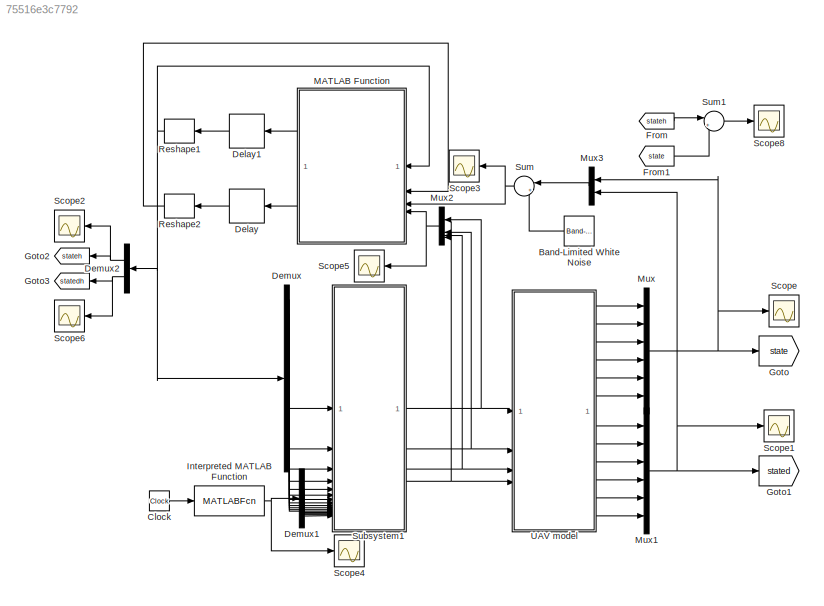
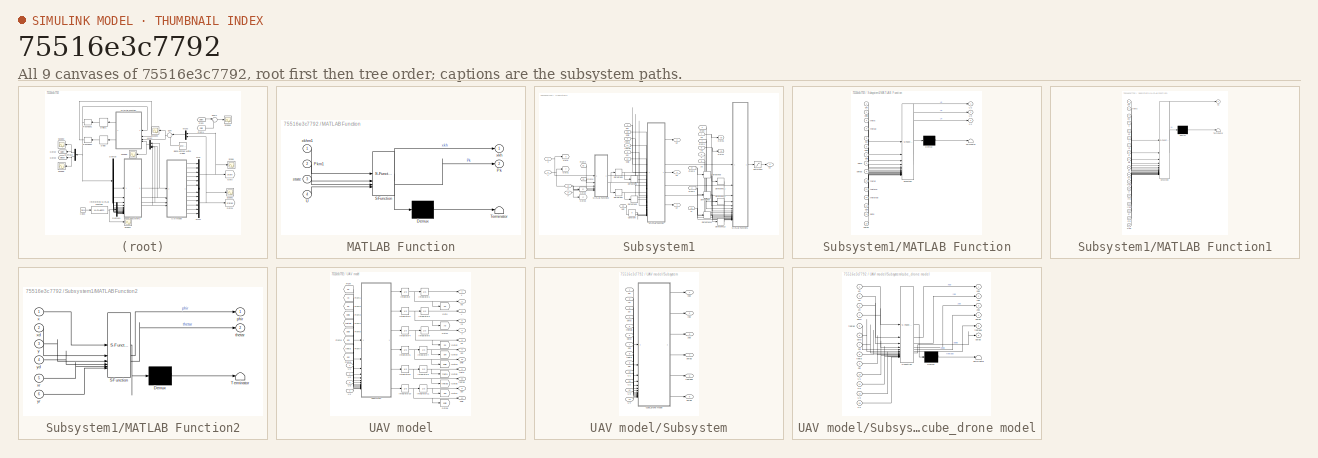
[diagram: thumbnail index - all 9 canvases of the model, root first then tree order]
MODEL slx_75516e3c7792
KIND model
CONFIG AbsTol = auto
CONFIG EnableMultiTasking = off
CONFIG FixedStep = 0.01
CONFIG MaxStep = auto
CONFIG MinStep = auto
CONFIG RelTol = 1e-3
CONFIG SampleTimeConstraint = Unconstrained
CONFIG SolverName = ode1
CONFIG StartTime = 0.0
CONFIG StopTime = 45
BLOCK [Reference] Band-Limited White Noise  REF=simulink/Sources/Band-Limited
White Noise
  NameLocation = top
  SourceBlock = simulink/Sources/Band-Limited\nWhite Noise
  SourceType = Band-Limited White Noise.
BLOCK [Clock] Clock
BLOCK [Delay] Delay
  DelayLength = 1
  InitialCondition = (1e-3)*eye(12,12)
  InputPortMap = u0
  NameLocation = top
BLOCK [Delay] Delay1
  DelayLength = 1
  InitialCondition = 0.001
  InputPortMap = u0
  NameLocation = top
BLOCK [Demux] Demux
  Outputs = 12
BLOCK [Demux] Demux1
BLOCK [Demux] Demux2
  NameLocation = top
  Outputs = 2
BLOCK [From] From
  GotoTag = stateh
  NameLocation = top
  TagVisibility = global
BLOCK [From] From1
  GotoTag = state
  TagVisibility = global
BLOCK [Goto] Goto
  GotoTag = state
  TagVisibility = global
BLOCK [Goto] Goto1
  GotoTag = stated
  TagVisibility = global
BLOCK [Goto] Goto2
  GotoTag = stateh
  NameLocation = top
  TagVisibility = global
BLOCK [Goto] Goto3
  GotoTag = statedh
  NameLocation = top
  TagVisibility = global
BLOCK [MATLABFcn] Interpreted MATLAB Function
  MATLABFcn = trajectory
  OutputDimensions = 4
BLOCK [SubSystem] MATLAB Function
  ErrorFcn = Stateflow.Translate.translate
  NameLocation = top
  PermitHierarchicalResolution = ExplicitOnly
  SFBlockType = MATLAB Function
  TreatAsAtomicUnit = on
BLOCK [Demux] MATLAB Function/ Demux 
  Outputs = 1
BLOCK [S-Function] MATLAB Function/ SFunction 
  EnableBusSupport = on
  FunctionName = sf_sfun
  PortCounts = [4 3]
  SFcnIsStateOwnerBlock = off
  SFunctionDeploymentMode = off
  Tag = Stateflow S-Function 5
BLOCK [Terminator] MATLAB Function/ Terminator 
BLOCK [Outport] MATLAB Function/Pk
  Port = 2
BLOCK [Inport] MATLAB Function/Pkm1
  Port = 2
BLOCK [Inport] MATLAB Function/U
  Port = 4
BLOCK [Inport] MATLAB Function/state
  Port = 3
BLOCK [Outport] MATLAB Function/xkh
BLOCK [Inport] MATLAB Function/xkhm1
BLOCK [Mux] Mux
  DisplayOption = bar
  Inputs = 6
BLOCK [Mux] Mux1
  DisplayOption = bar
  Inputs = 6
BLOCK [Mux] Mux2
  DisplayOption = bar
  NameLocation = top
BLOCK [Mux] Mux3
  DisplayOption = bar
  Inputs = 2
  NameLocation = top
BLOCK [Reshape] Reshape1
  NameLocation = top
  OutputDimensionality = Customize
  OutputDimensions = [12,1]
BLOCK [Reshape] Reshape2
  NameLocation = top
  OutputDimensionality = Customize
  OutputDimensions = [12,12]
BLOCK [Scope] Scope
  Floating = off
  NumInputPorts = 1
  ScopeSpecificationString = Simulink.scopes.TimeScopeBlockCfg('CurrentConfiguration', extmgr.ConfigurationSet(extmgr.Configuration('Core','General UI',true),extmgr.Configuration('Core','Source UI',true),extmgr.Configuration('Sources','WiredSimulink',true,'DataLoggingVariableName','stateahsmc','DataLogging',true,'DataLoggingSaveFormat','StructureWithTime'),extmgr.Configuration('Visuals','Time Domain',true,'SerializedDisplays'...<+1718ch>
BLOCK [Scope] Scope1
  Floating = off
  NumInputPorts = 1
  ScopeSpecificationString = Simulink.scopes.TimeScopeBlockCfg('CurrentConfiguration', extmgr.ConfigurationSet(extmgr.Configuration('Core','General UI',true),extmgr.Configuration('Core','Source UI',true),extmgr.Configuration('Sources','WiredSimulink',true,'DataLoggingVariableName','stateahsmcdot','DataLogging',true,'DataLoggingSaveFormat','StructureWithTime'),extmgr.Configuration('Visuals','Time Domain',true,'SerializedDispla...<+1635ch>
BLOCK [Scope] Scope2
  Floating = off
  NameLocation = top
  NumInputPorts = 1
  ScopeSpecificationString = Simulink.scopes.TimeScopeBlockCfg('CurrentConfiguration', extmgr.ConfigurationSet(extmgr.Configuration('Core','General UI',true),extmgr.Configuration('Core','Source UI',true),extmgr.Configuration('Sources','WiredSimulink',true,'DataLoggingVariableName','statehahsmc','DataLogging',true,'DataLoggingSaveFormat','StructureWithTime'),extmgr.Configuration('Visuals','Time Domain',true,'SerializedDisplays...<+1427ch>
BLOCK [Scope] Scope3
  Floating = off
  NameLocation = top
  NumInputPorts = 1
  ScopeSpecificationString = Simulink.scopes.TimeScopeBlockCfg('CurrentConfiguration', extmgr.ConfigurationSet(extmgr.Configuration('Core','General UI',true),extmgr.Configuration('Core','Source UI',true),extmgr.Configuration('Sources','WiredSimulink',true,'DataLoggingVariableName','ScopeData1'),extmgr.Configuration('Visuals','Time Domain',true,'SerializedDisplays',{struct('MinYLimReal','-1.84772','MaxYLimReal','13.54197','YLa...<+1460ch>
BLOCK [Scope] Scope4
  Floating = off
  NumInputPorts = 1
  ScopeSpecificationString = Simulink.scopes.TimeScopeBlockCfg('CurrentConfiguration', extmgr.ConfigurationSet(extmgr.Configuration('Core','General UI',true),extmgr.Configuration('Core','Source UI',true),extmgr.Configuration('Sources','WiredSimulink',true,'DataLoggingVariableName','ScopeData1'),extmgr.Configuration('Visuals','Time Domain',true),extmgr.Configuration('Tools','Plot Navigation',true),extmgr.Configuration('Tools',...<+40ch>
BLOCK [Scope] Scope5
  Floating = off
  NameLocation = top
  NumInputPorts = 1
  ScopeSpecificationString = Simulink.scopes.TimeScopeBlockCfg('CurrentConfiguration', extmgr.ConfigurationSet(extmgr.Configuration('Core','General UI',true),extmgr.Configuration('Core','Source UI',true),extmgr.Configuration('Sources','WiredSimulink',true,'DataLoggingVariableName','controlahsmc','DataLogging',true,'DataLoggingSaveFormat','StructureWithTime'),extmgr.Configuration('Visuals','Time Domain',true,'SerializedDisplay...<+1534ch>
BLOCK [Scope] Scope6
  Floating = off
  NameLocation = top
  NumInputPorts = 1
  ScopeSpecificationString = Simulink.scopes.TimeScopeBlockCfg('CurrentConfiguration', extmgr.ConfigurationSet(extmgr.Configuration('Core','General UI',true),extmgr.Configuration('Core','Source UI',true),extmgr.Configuration('Sources','WiredSimulink',true,'DataLoggingVariableName','statehahsmcdot','DataLogging',true,'DataLoggingSaveFormat','StructureWithTime'),extmgr.Configuration('Visuals','Time Domain',true,'SerializedDispl...<+1430ch>
BLOCK [Scope] Scope8
  Floating = off
  NumInputPorts = 1
  ScopeSpecificationString = Simulink.scopes.TimeScopeBlockCfg('CurrentConfiguration', extmgr.ConfigurationSet(extmgr.Configuration('Core','General UI',true),extmgr.Configuration('Core','Source UI',true),extmgr.Configuration('Sources','WiredSimulink',true,'DataLoggingVariableName','errorahsmc','DataLogging',true,'DataLoggingSaveFormat','StructureWithTime'),extmgr.Configuration('Visuals','Time Domain',true,'SerializedDisplays'...<+1422ch>
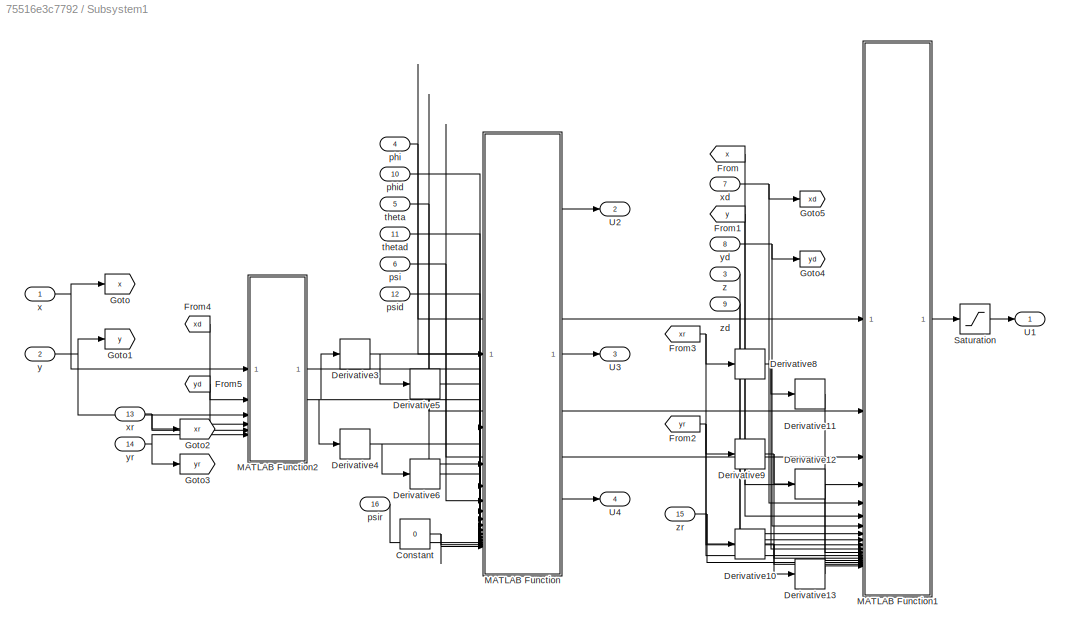
BLOCK [SubSystem] Subsystem1
BLOCK [Constant] Subsystem1/Constant
  Value = 0
BLOCK [Derivative] Subsystem1/Derivative10
BLOCK [Derivative] Subsystem1/Derivative11
BLOCK [Derivative] Subsystem1/Derivative12
BLOCK [Derivative] Subsystem1/Derivative13
BLOCK [Derivative] Subsystem1/Derivative3
BLOCK [Derivative] Subsystem1/Derivative4
BLOCK [Derivative] Subsystem1/Derivative5
BLOCK [Derivative] Subsystem1/Derivative6
BLOCK [Derivative] Subsystem1/Derivative8
BLOCK [Derivative] Subsystem1/Derivative9
BLOCK [From] Subsystem1/From
  GotoTag = x
BLOCK [From] Subsystem1/From1
  GotoTag = y
BLOCK [From] Subsystem1/From2
  GotoTag = yr
BLOCK [From] Subsystem1/From3
  GotoTag = xr
BLOCK [From] Subsystem1/From4
  GotoTag = xd
BLOCK [From] Subsystem1/From5
  GotoTag = yd
BLOCK [Goto] Subsystem1/Goto
  GotoTag = x
BLOCK [Goto] Subsystem1/Goto1
  GotoTag = y
BLOCK [Goto] Subsystem1/Goto2
  GotoTag = xr
BLOCK [Goto] Subsystem1/Goto3
  GotoTag = yr
BLOCK [Goto] Subsystem1/Goto4
  GotoTag = yd
BLOCK [Goto] Subsystem1/Goto5
  GotoTag = xd
BLOCK [SubSystem] Subsystem1/MATLAB Function
  ErrorFcn = Stateflow.Translate.translate
  PermitHierarchicalResolution = ExplicitOnly
  SFBlockType = MATLAB Function
  TreatAsAtomicUnit = on
BLOCK [Demux] Subsystem1/MATLAB Function/ Demux 
  Outputs = 1
BLOCK [S-Function] Subsystem1/MATLAB Function/ SFunction 
  EnableBusSupport = on
  FunctionName = sf_sfun
  PortCounts = [15 4]
  SFcnIsStateOwnerBlock = off
  SFunctionDeploymentMode = off
  Tag = Stateflow S-Function 6
BLOCK [Terminator] Subsystem1/MATLAB Function/ Terminator 
BLOCK [Outport] Subsystem1/MATLAB Function/U2
BLOCK [Outport] Subsystem1/MATLAB Function/U3
  Port = 2
BLOCK [Outport] Subsystem1/MATLAB Function/U4
  Port = 3
BLOCK [Inport] Subsystem1/MATLAB Function/phi
BLOCK [Inport] Subsystem1/MATLAB Function/phid
  Port = 2
BLOCK [Inport] Subsystem1/MATLAB Function/phir
  Port = 7
BLOCK [Inport] Subsystem1/MATLAB Function/phird
  Port = 8
BLOCK [Inport] Subsystem1/MATLAB Function/phirdd
  Port = 9
BLOCK [Inport] Subsystem1/MATLAB Function/psi
  Port = 5
BLOCK [Inport] Subsystem1/MATLAB Function/psid
  Port = 6
BLOCK [Inport] Subsystem1/MATLAB Function/psir
  Port = 13
BLOCK [Inport] Subsystem1/MATLAB Function/psird
  Port = 14
BLOCK [Inport] Subsystem1/MATLAB Function/psirdd
  Port = 15
BLOCK [Inport] Subsystem1/MATLAB Function/theta
  Port = 3
BLOCK [Inport] Subsystem1/MATLAB Function/thetad
  Port = 4
BLOCK [Inport] Subsystem1/MATLAB Function/thetar
  Port = 10
BLOCK [Inport] Subsystem1/MATLAB Function/thetard
  Port = 11
BLOCK [Inport] Subsystem1/MATLAB Function/thetardd
  Port = 12
BLOCK [SubSystem] Subsystem1/MATLAB Function1
  ErrorFcn = Stateflow.Translate.translate
  PermitHierarchicalResolution = ExplicitOnly
  SFBlockType = MATLAB Function
  TreatAsAtomicUnit = on
BLOCK [Demux] Subsystem1/MATLAB Function1/ Demux 
  Outputs = 1
BLOCK [S-Function] Subsystem1/MATLAB Function1/ SFunction 
  EnableBusSupport = on
  FunctionName = sf_sfun
  PortCounts = [18 2]
  SFcnIsStateOwnerBlock = off
  SFunctionDeploymentMode = off
  Tag = Stateflow S-Function 7
BLOCK [Terminator] Subsystem1/MATLAB Function1/ Terminator 
BLOCK [Outport] Subsystem1/MATLAB Function1/U1
BLOCK [Inport] Subsystem1/MATLAB Function1/phi
BLOCK [Inport] Subsystem1/MATLAB Function1/psi
  Port = 3
BLOCK [Inport] Subsystem1/MATLAB Function1/theta
  Port = 2
BLOCK [Inport] Subsystem1/MATLAB Function1/x
  Port = 4
BLOCK [Inport] Subsystem1/MATLAB Function1/xd
  Port = 5
BLOCK [Inport] Subsystem1/MATLAB Function1/xr
  Port = 10
BLOCK [Inport] Subsystem1/MATLAB Function1/xrd
  Port = 11
BLOCK [Inport] Subsystem1/MATLAB Function1/xrdd
  Port = 12
BLOCK [Inport] Subsystem1/MATLAB Function1/y
  Port = 6
BLOCK [Inport] Subsystem1/MATLAB Function1/yd
  Port = 7
BLOCK [Inport] Subsystem1/MATLAB Function1/yr
  Port = 13
BLOCK [Inport] Subsystem1/MATLAB Function1/yrd
  Port = 14
BLOCK [Inport] Subsystem1/MATLAB Function1/yrdd
  Port = 15
BLOCK [Inport] Subsystem1/MATLAB Function1/z
  Port = 8
BLOCK [Inport] Subsystem1/MATLAB Function1/zd
  Port = 9
BLOCK [Inport] Subsystem1/MATLAB Function1/zr
  Port = 16
BLOCK [Inport] Subsystem1/MATLAB Function1/zrd
  Port = 17
BLOCK [Inport] Subsystem1/MATLAB Function1/zrdd
  Port = 18
BLOCK [SubSystem] Subsystem1/MATLAB Function2
  ErrorFcn = Stateflow.Translate.translate
  PermitHierarchicalResolution = ExplicitOnly
  SFBlockType = MATLAB Function
  TreatAsAtomicUnit = on
BLOCK [Demux] Subsystem1/MATLAB Function2/ Demux 
  Outputs = 1
BLOCK [S-Function] Subsystem1/MATLAB Function2/ SFunction 
  EnableBusSupport = on
  FunctionName = sf_sfun
  PortCounts = [6 3]
  SFcnIsStateOwnerBlock = off
  SFunctionDeploymentMode = off
  Tag = Stateflow S-Function 8
BLOCK [Terminator] Subsystem1/MATLAB Function2/ Terminator 
BLOCK [Outport] Subsystem1/MATLAB Function2/phir
BLOCK [Outport] Subsystem1/MATLAB Function2/thetar
  Port = 2
BLOCK [Inport] Subsystem1/MATLAB Function2/x
BLOCK [Inport] Subsystem1/MATLAB Function2/xd
  Port = 2
BLOCK [Inport] Subsystem1/MATLAB Function2/xr
  Port = 5
BLOCK [Inport] Subsystem1/MATLAB Function2/y
  Port = 3
BLOCK [Inport] Subsystem1/MATLAB Function2/yd
  Port = 4
BLOCK [Inport] Subsystem1/MATLAB Function2/yr
  Port = 6
BLOCK [Saturate] Subsystem1/Saturation
  LowerLimit = 0
  UpperLimit = 50
BLOCK [Outport] Subsystem1/U1
BLOCK [Outport] Subsystem1/U2
  Port = 2
BLOCK [Outport] Subsystem1/U3
  Port = 3
BLOCK [Outport] Subsystem1/U4
  Port = 4
BLOCK [Inport] Subsystem1/phi
  Port = 4
BLOCK [Inport] Subsystem1/phid
  Port = 10
BLOCK [Inport] Subsystem1/psi
  Port = 6
BLOCK [Inport] Subsystem1/psid
  Port = 12
BLOCK [Inport] Subsystem1/psir
  Port = 16
BLOCK [Inport] Subsystem1/theta
  Port = 5
BLOCK [Inport] Subsystem1/thetad
  Port = 11
BLOCK [Inport] Subsystem1/x
BLOCK [Inport] Subsystem1/xd
  Port = 7
BLOCK [Inport] Subsystem1/xr
  Port = 13
BLOCK [Inport] Subsystem1/y
  Port = 2
BLOCK [Inport] Subsystem1/yd
  Port = 8
BLOCK [Inport] Subsystem1/yr
  Port = 14
BLOCK [Inport] Subsystem1/z
  Port = 3
BLOCK [Inport] Subsystem1/zd
  Port = 9
BLOCK [Inport] Subsystem1/zr
  Port = 15
BLOCK [Sum] Sum
  Inputs = |++
  NameLocation = top
BLOCK [Sum] Sum1
  Inputs = |+-
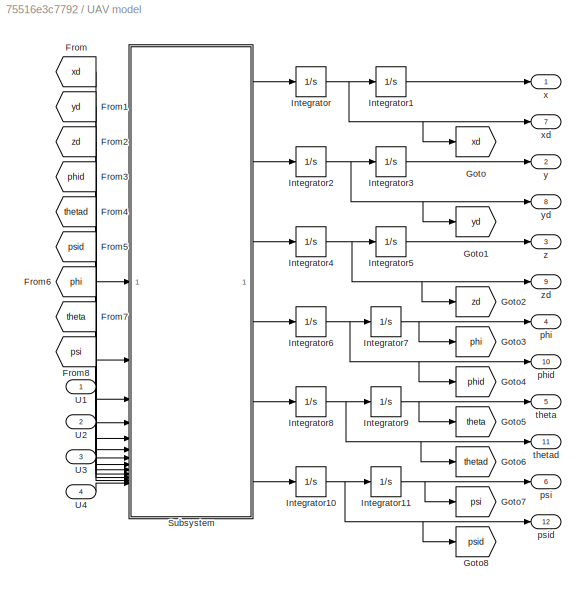
BLOCK [SubSystem] UAV model
BLOCK [From] UAV model/From
  GotoTag = xd
  TagVisibility = global
BLOCK [From] UAV model/From1
  GotoTag = yd
  TagVisibility = global
BLOCK [From] UAV model/From2
  GotoTag = zd
  TagVisibility = global
BLOCK [From] UAV model/From3
  GotoTag = phid
  TagVisibility = global
BLOCK [From] UAV model/From4
  GotoTag = thetad
  TagVisibility = global
BLOCK [From] UAV model/From5
  GotoTag = psid
  TagVisibility = global
BLOCK [From] UAV model/From6
  GotoTag = phi
  TagVisibility = global
BLOCK [From] UAV model/From7
  GotoTag = theta
  TagVisibility = global
BLOCK [From] UAV model/From8
  GotoTag = psi
  TagVisibility = global
BLOCK [Goto] UAV model/Goto
  GotoTag = xd
  TagVisibility = global
BLOCK [Goto] UAV model/Goto1
  GotoTag = yd
  TagVisibility = global
BLOCK [Goto] UAV model/Goto2
  GotoTag = zd
  TagVisibility = global
BLOCK [Goto] UAV model/Goto3
  GotoTag = phi
  TagVisibility = global
BLOCK [Goto] UAV model/Goto4
  GotoTag = phid
  TagVisibility = global
BLOCK [Goto] UAV model/Goto5
  GotoTag = theta
  TagVisibility = global
BLOCK [Goto] UAV model/Goto6
  GotoTag = thetad
  TagVisibility = global
BLOCK [Goto] UAV model/Goto7
  GotoTag = psi
  TagVisibility = global
BLOCK [Goto] UAV model/Goto8
  GotoTag = psid
  TagVisibility = global
BLOCK [Integrator] UAV model/Integrator
  InitialCondition = 0.01
BLOCK [Integrator] UAV model/Integrator1
  InitialCondition = 0.01
BLOCK [Integrator] UAV model/Integrator10
  InitialCondition = 0.01
BLOCK [Integrator] UAV model/Integrator11
  InitialCondition = 0.01
BLOCK [Integrator] UAV model/Integrator2
  InitialCondition = 0.01
BLOCK [Integrator] UAV model/Integrator3
  InitialCondition = 0.01
BLOCK [Integrator] UAV model/Integrator4
  InitialCondition = 0.01
BLOCK [Integrator] UAV model/Integrator5
  InitialCondition = 0.01
  LimitOutput = on
  LowerSaturationLimit = 0
BLOCK [Integrator] UAV model/Integrator6
  InitialCondition = 0.01
BLOCK [Integrator] UAV model/Integrator7
  InitialCondition = 0.01
BLOCK [Integrator] UAV model/Integrator8
  InitialCondition = 0.01
BLOCK [Integrator] UAV model/Integrator9
  InitialCondition = 0.01
BLOCK [SubSystem] UAV model/Subsystem
BLOCK [Inport] UAV model/Subsystem/U1
  Port = 10
BLOCK [Inport] UAV model/Subsystem/U2
  Port = 11
BLOCK [Inport] UAV model/Subsystem/U3
  Port = 12
BLOCK [Inport] UAV model/Subsystem/U4
  Port = 13
BLOCK [SubSystem] UAV model/Subsystem/cube_drone model
  ErrorFcn = Stateflow.Translate.translate
  PermitHierarchicalResolution = ExplicitOnly
  SFBlockType = MATLAB Function
  TreatAsAtomicUnit = on
BLOCK [Demux] UAV model/Subsystem/cube_drone model/ Demux 
  Outputs = 1
BLOCK [S-Function] UAV model/Subsystem/cube_drone model/ SFunction 
  EnableBusSupport = on
  FunctionName = sf_sfun
  PortCounts = [13 7]
  SFcnIsStateOwnerBlock = off
  SFunctionDeploymentMode = off
  Tag = Stateflow S-Function 2
BLOCK [Terminator] UAV model/Subsystem/cube_drone model/ Terminator 
BLOCK [Inport] UAV model/Subsystem/cube_drone model/U1
  Port = 10
BLOCK [Inport] UAV model/Subsystem/cube_drone model/U2
  Port = 11
BLOCK [Inport] UAV model/Subsystem/cube_drone model/U3
  Port = 12
BLOCK [Inport] UAV model/Subsystem/cube_drone model/U4
  Port = 13
BLOCK [Inport] UAV model/Subsystem/cube_drone model/phi
  Port = 7
BLOCK [Inport] UAV model/Subsystem/cube_drone model/phid
  Port = 4
BLOCK [Outport] UAV model/Subsystem/cube_drone model/phidd
  Port = 4
BLOCK [Inport] UAV model/Subsystem/cube_drone model/psi
  Port = 9
BLOCK [Inport] UAV model/Subsystem/cube_drone model/psid
  Port = 6
BLOCK [Outport] UAV model/Subsystem/cube_drone model/psidd
  Port = 6
BLOCK [Inport] UAV model/Subsystem/cube_drone model/theta
  Port = 8
BLOCK [Inport] UAV model/Subsystem/cube_drone model/thetad
  Port = 5
BLOCK [Outport] UAV model/Subsystem/cube_drone model/thetadd
  Port = 5
BLOCK [Inport] UAV model/Subsystem/cube_drone model/xd
BLOCK [Outport] UAV model/Subsystem/cube_drone model/xdd
BLOCK [Inport] UAV model/Subsystem/cube_drone model/yd
  Port = 2
BLOCK [Outport] UAV model/Subsystem/cube_drone model/ydd
  Port = 2
BLOCK [Inport] UAV model/Subsystem/cube_drone model/zd
  Port = 3
BLOCK [Outport] UAV model/Subsystem/cube_drone model/zdd
  Port = 3
BLOCK [Inport] UAV model/Subsystem/phi
  Port = 7
BLOCK [Inport] UAV model/Subsystem/phid
  Port = 4
BLOCK [Outport] UAV model/Subsystem/phidd
  Port = 4
BLOCK [Inport] UAV model/Subsystem/psi
  Port = 9
BLOCK [Inport] UAV model/Subsystem/psid
  Port = 6
BLOCK [Outport] UAV model/Subsystem/psidd
  Port = 6
BLOCK [Inport] UAV model/Subsystem/theta
  Port = 8
BLOCK [Inport] UAV model/Subsystem/thetad
  Port = 5
BLOCK [Outport] UAV model/Subsystem/thetadd
  Port = 5
BLOCK [Inport] UAV model/Subsystem/xd
BLOCK [Outport] UAV model/Subsystem/xdd
BLOCK [Inport] UAV model/Subsystem/yd
  Port = 2
BLOCK [Outport] UAV model/Subsystem/ydd
  Port = 2
BLOCK [Inport] UAV model/Subsystem/zd
  Port = 3
BLOCK [Outport] UAV model/Subsystem/zdd
  Port = 3
BLOCK [Inport] UAV model/U1
BLOCK [Inport] UAV model/U2
  Port = 2
BLOCK [Inport] UAV model/U3
  Port = 3
BLOCK [Inport] UAV model/U4
  Port = 4
BLOCK [Outport] UAV model/phi
  Port = 4
BLOCK [Outport] UAV model/phid
  Port = 10
BLOCK [Outport] UAV model/psi
  Port = 6
BLOCK [Outport] UAV model/psid
  Port = 12
BLOCK [Outport] UAV model/theta
  Port = 5
BLOCK [Outport] UAV model/thetad
  Port = 11
BLOCK [Outport] UAV model/x
BLOCK [Outport] UAV model/xd
  Port = 7
BLOCK [Outport] UAV model/y
  Port = 2
BLOCK [Outport] UAV model/yd
  Port = 8
BLOCK [Outport] UAV model/z
  Port = 3
BLOCK [Outport] UAV model/zd
  Port = 9
LINE Band-Limited White Noise:1 -> Sum:2
LINE Clock:1 -> Interpreted MATLAB Function:1
LINE Delay1:1 -> Reshape1:1
LINE Delay:1 -> Reshape2:1
LINE Demux1:1 -> Subsystem1:13
LINE Demux1:2 -> Subsystem1:14
LINE Demux1:3 -> Subsystem1:15
LINE Demux1:4 -> Subsystem1:16
NET Demux2:1 -> Goto2:1, Scope2:1
NET Demux2:2 -> Goto3:1, Scope6:1
LINE Demux:1 -> Subsystem1:1
LINE Demux:10 -> Subsystem1:10
LINE Demux:11 -> Subsystem1:11
LINE Demux:12 -> Subsystem1:12
LINE Demux:2 -> Subsystem1:2
LINE Demux:3 -> Subsystem1:3
LINE Demux:4 -> Subsystem1:4
LINE Demux:5 -> Subsystem1:5
LINE Demux:6 -> Subsystem1:6
LINE Demux:7 -> Subsystem1:7
LINE Demux:8 -> Subsystem1:8
LINE Demux:9 -> Subsystem1:9
LINE From1:1 -> Sum1:2
LINE From:1 -> Sum1:1
NET Interpreted MATLAB Function:1 -> Demux1:1, Scope4:1
LINE MATLAB Function:1 -> Delay1:1
LINE MATLAB Function:2 -> Delay:1
NET Mux1:1 -> Goto1:1, Mux3:2, Scope1:1
NET Mux2:1 -> MATLAB Function:4, Scope5:1
LINE Mux3:1 -> Sum:1
NET Mux:1 -> Goto:1, Mux3:1, Scope:1
NET Reshape1:1 -> Demux2:1, Demux:1, MATLAB Function:1
LINE Reshape2:1 -> MATLAB Function:2
NET Subsystem1/Constant:1 -> Subsystem1/MATLAB Function:14, Subsystem1/MATLAB Function:15
NET Subsystem1/Derivative10:1 -> Subsystem1/Derivative13:1, Subsystem1/MATLAB Function1:17
LINE Subsystem1/Derivative11:1 -> Subsystem1/MATLAB Function1:12
LINE Subsystem1/Derivative12:1 -> Subsystem1/MATLAB Function1:15
LINE Subsystem1/Derivative13:1 -> Subsystem1/MATLAB Function1:18
NET Subsystem1/Derivative3:1 -> Subsystem1/Derivative5:1, Subsystem1/MATLAB Function:8
NET Subsystem1/Derivative4:1 -> Subsystem1/Derivative6:1, Subsystem1/MATLAB Function:11
LINE Subsystem1/Derivative5:1 -> Subsystem1/MATLAB Function:9
LINE Subsystem1/Derivative6:1 -> Subsystem1/MATLAB Function:12
NET Subsystem1/Derivative8:1 -> Subsystem1/Derivative11:1, Subsystem1/MATLAB Function1:11
NET Subsystem1/Derivative9:1 -> Subsystem1/Derivative12:1, Subsystem1/MATLAB Function1:14
LINE Subsystem1/From1:1 -> Subsystem1/MATLAB Function1:6
NET Subsystem1/From2:1 -> Subsystem1/Derivative9:1, Subsystem1/MATLAB Function1:13
NET Subsystem1/From3:1 -> Subsystem1/Derivative8:1, Subsystem1/MATLAB Function1:10
LINE Subsystem1/From4:1 -> Subsystem1/MATLAB Function2:2
LINE Subsystem1/From5:1 -> Subsystem1/MATLAB Function2:4
LINE Subsystem1/From:1 -> Subsystem1/MATLAB Function1:4
LINE Subsystem1/MATLAB Function1:1 -> Subsystem1/Saturation:1
NET Subsystem1/MATLAB Function2:1 -> Subsystem1/Derivative3:1, Subsystem1/MATLAB Function:7
NET Subsystem1/MATLAB Function2:2 -> Subsystem1/Derivative4:1, Subsystem1/MATLAB Function:10
LINE Subsystem1/MATLAB Function:1 -> Subsystem1/U2:1
LINE Subsystem1/MATLAB Function:2 -> Subsystem1/U3:1
LINE Subsystem1/MATLAB Function:3 -> Subsystem1/U4:1
LINE Subsystem1/Saturation:1 -> Subsystem1/U1:1
NET Subsystem1/phi:1 -> Subsystem1/MATLAB Function1:1, Subsystem1/MATLAB Function:1
LINE Subsystem1/phid:1 -> Subsystem1/MATLAB Function:2
NET Subsystem1/psi:1 -> Subsystem1/MATLAB Function1:3, Subsystem1/MATLAB Function:5
LINE Subsystem1/psid:1 -> Subsystem1/MATLAB Function:6
LINE Subsystem1/psir:1 -> Subsystem1/MATLAB Function:13
NET Subsystem1/theta:1 -> Subsystem1/MATLAB Function1:2, Subsystem1/MATLAB Function:3
LINE Subsystem1/thetad:1 -> Subsystem1/MATLAB Function:4
NET Subsystem1/x:1 -> Subsystem1/Goto:1, Subsystem1/MATLAB Function2:1
NET Subsystem1/xd:1 -> Subsystem1/Goto5:1, Subsystem1/MATLAB Function1:5
NET Subsystem1/xr:1 -> Subsystem1/Goto2:1, Subsystem1/MATLAB Function2:5
NET Subsystem1/y:1 -> Subsystem1/Goto1:1, Subsystem1/MATLAB Function2:3
NET Subsystem1/yd:1 -> Subsystem1/Goto4:1, Subsystem1/MATLAB Function1:7
NET Subsystem1/yr:1 -> Subsystem1/Goto3:1, Subsystem1/MATLAB Function2:6
LINE Subsystem1/z:1 -> Subsystem1/MATLAB Function1:8
LINE Subsystem1/zd:1 -> Subsystem1/MATLAB Function1:9
NET Subsystem1/zr:1 -> Subsystem1/Derivative10:1, Subsystem1/MATLAB Function1:16
NET Subsystem1:1 -> Mux2:1, UAV model:1
NET Subsystem1:2 -> Mux2:2, UAV model:2
NET Subsystem1:3 -> Mux2:3, UAV model:3
NET Subsystem1:4 -> Mux2:4, UAV model:4
LINE Sum1:1 -> Scope8:1
NET Sum:1 -> MATLAB Function:3, Scope3:1
LINE UAV model/From1:1 -> UAV model/Subsystem:2
LINE UAV model/From2:1 -> UAV model/Subsystem:3
LINE UAV model/From3:1 -> UAV model/Subsystem:4
LINE UAV model/From4:1 -> UAV model/Subsystem:5
LINE UAV model/From5:1 -> UAV model/Subsystem:6
LINE UAV model/From6:1 -> UAV model/Subsystem:7
LINE UAV model/From7:1 -> UAV model/Subsystem:8
LINE UAV model/From8:1 -> UAV model/Subsystem:9
LINE UAV model/From:1 -> UAV model/Subsystem:1
NET UAV model/Integrator10:1 -> UAV model/Goto8:1, UAV model/Integrator11:1, UAV model/psid:1
NET UAV model/Integrator11:1 -> UAV model/Goto7:1, UAV model/psi:1
LINE UAV model/Integrator1:1 -> UAV model/x:1
NET UAV model/Integrator2:1 -> UAV model/Goto1:1, UAV model/Integrator3:1, UAV model/yd:1
LINE UAV model/Integrator3:1 -> UAV model/y:1
NET UAV model/Integrator4:1 -> UAV model/Goto2:1, UAV model/Integrator5:1, UAV model/zd:1
LINE UAV model/Integrator5:1 -> UAV model/z:1
NET UAV model/Integrator6:1 -> UAV model/Goto4:1, UAV model/Integrator7:1, UAV model/phid:1
NET UAV model/Integrator7:1 -> UAV model/Goto3:1, UAV model/phi:1
NET UAV model/Integrator8:1 -> UAV model/Goto6:1, UAV model/Integrator9:1, UAV model/thetad:1
NET UAV model/Integrator9:1 -> UAV model/Goto5:1, UAV model/theta:1
NET UAV model/Integrator:1 -> UAV model/Goto:1, UAV model/Integrator1:1, UAV model/xd:1
LINE UAV model/Subsystem/U1:1 -> UAV model/Subsystem/cube_drone model:10
LINE UAV model/Subsystem/U2:1 -> UAV model/Subsystem/cube_drone model:11
LINE UAV model/Subsystem/U3:1 -> UAV model/Subsystem/cube_drone model:12
LINE UAV model/Subsystem/U4:1 -> UAV model/Subsystem/cube_drone model:13
LINE UAV model/Subsystem/cube_drone model:1 -> UAV model/Subsystem/xdd:1
LINE UAV model/Subsystem/cube_drone model:2 -> UAV model/Subsystem/ydd:1
LINE UAV model/Subsystem/cube_drone model:3 -> UAV model/Subsystem/zdd:1
LINE UAV model/Subsystem/cube_drone model:4 -> UAV model/Subsystem/phidd:1
LINE UAV model/Subsystem/cube_drone model:5 -> UAV model/Subsystem/thetadd:1
LINE UAV model/Subsystem/cube_drone model:6 -> UAV model/Subsystem/psidd:1
LINE UAV model/Subsystem/phi:1 -> UAV model/Subsystem/cube_drone model:7
LINE UAV model/Subsystem/phid:1 -> UAV model/Subsystem/cube_drone model:4
LINE UAV model/Subsystem/psi:1 -> UAV model/Subsystem/cube_drone model:9
LINE UAV model/Subsystem/psid:1 -> UAV model/Subsystem/cube_drone model:6
LINE UAV model/Subsystem/theta:1 -> UAV model/Subsystem/cube_drone model:8
LINE UAV model/Subsystem/thetad:1 -> UAV model/Subsystem/cube_drone model:5
LINE UAV model/Subsystem/xd:1 -> UAV model/Subsystem/cube_drone model:1
LINE UAV model/Subsystem/yd:1 -> UAV model/Subsystem/cube_drone model:2
LINE UAV model/Subsystem/zd:1 -> UAV model/Subsystem/cube_drone model:3
LINE UAV model/Subsystem:1 -> UAV model/Integrator:1
LINE UAV model/Subsystem:2 -> UAV model/Integrator2:1
LINE UAV model/Subsystem:3 -> UAV model/Integrator4:1
LINE UAV model/Subsystem:4 -> UAV model/Integrator6:1
LINE UAV model/Subsystem:5 -> UAV model/Integrator8:1
LINE UAV model/Subsystem:6 -> UAV model/Integrator10:1
LINE UAV model/U1:1 -> UAV model/Subsystem:10
LINE UAV model/U2:1 -> UAV model/Subsystem:11
LINE UAV model/U3:1 -> UAV model/Subsystem:12
LINE UAV model/U4:1 -> UAV model/Subsystem:13
LINE UAV model:1 -> Mux:1
LINE UAV model:10 -> Mux1:4
LINE UAV model:11 -> Mux1:5
LINE UAV model:12 -> Mux1:6
LINE UAV model:2 -> Mux:2
LINE UAV model:3 -> Mux:3
LINE UAV model:4 -> Mux:4
LINE UAV model:5 -> Mux:5
LINE UAV model:6 -> Mux:6
LINE UAV model:7 -> Mux1:1
LINE UAV model:8 -> Mux1:2
LINE UAV model:9 -> Mux1:3
note: NET lines group one-source signal fan-out (src -> all destinations, sorted); 1:1 wires keep LINE
CHART Subsystem1/MATLAB Function2 states=1 transitions=1
  STATE_LABEL 'eML_blk_kernel()'
  STATE_LABEL 'SCRIPT:\nfunction [phir,thetar] = fcn(x,xd,y,yd,xr,yr)\nkpx=0.1;\nkdx=0.15;\nkpy=0.1;\nkdy=0.15;\nthetar=kpx*(xr-x)-kdx*xd;\nphir=-kpy*(yr-y)+kdy*yd;\nend'
CHART UAV model/Subsystem/cube_drone model states=1 transitions=1
  STATE_LABEL 'eML_blk_kernel()'
  STATE_LABEL 'SCRIPT:\nfunction [xdd,ydd,zdd,phidd,thetadd,psidd] = fcn(xd,yd,zd,phid,thetad,psid,phi,theta,psi,U1,U2,U3,U4)\n%cos,sin\ncphi=cos(phi);\nsphi=sin(phi);\nctheta=cos(theta);\nstheta=sin(theta);\ncpsi=cos(psi);\nspsi=sin(psi);\n%parameters\nm=1.96;\ng=9.81;\nKdx=0.00055670;\nKdy=0.00055670;\nKdz=0.0006354;\nIxx=0.00149;\nIyy=0.00153;\nIzz=0.00532;\n%motion equation\nxdd=1/m*((spsi*sphi+cpsi*stheta*cphi)*U1-Kdx*xd);\nyd...<+208ch>'
CHART MATLAB Function states=1 transitions=1
  STATE_LABEL 'eML_blk_kernel()'
  STATE_LABEL 'SCRIPT:\nfunction [xkh,Pk] = EKF(xkhm1,Pkm1,state,U)\n%parameters\ndt=0.01;\nQ=1e-5;\nR=1e-6;\nm=1.96;\ng=9.81;\nKdx=0.00055670;\nKdy=0.00055670;\nKdz=0.0006354;\nIxx=0.00149;\nIyy=0.00153;\nIzz=0.00532;\n%states\nx=xkhm1(1);\ny=xkhm1(2);\nz=xkhm1(3);\nphi=xkhm1(4);\ntheta=xkhm1(5);\npsi=xkhm1(6);\nxd=xkhm1(7);\nyd=xkhm1(8);\nzd=xkhm1(9);\nphid=xkhm1(10);\nthetad=xkhm1(11);\npsid=xkhm1(12);\n%linearized\nA=[0, 0, 0, 0, 0, 0,...<+1104ch>'
CHART Subsystem1/MATLAB Function states=1 transitions=1
  STATE_LABEL 'eML_blk_kernel()'
  STATE_LABEL 'SCRIPT:\nfunction [U2,U3,U4] = fcn(phi,phid,theta,thetad,psi,psid,phir,phird,phirdd,thetar,thetard,thetardd,psir,psird,psirdd)\nIxx=0.00219;\nIyy=0.00432;\nIzz=0.00578;\ncphi=3.5;\nctheta=3.5;\ncpsi=0.5;\nfphi=psid*thetad*(Iyy-Izz)/Ixx;\nftheta=psid*phid*(Izz-Ixx)/Iyy;\nfpsi=phid*thetad*(Ixx-Iyy)/Izz;\nbphi=1/Ixx;\nbtheta=1/Iyy;\nbpsi=1/Izz;\nKphi=0.4;\nKtheta=0.4;\nKpsi=0.2;\nsphi=cphi*(phi-phir)+(phid-phird);\nst...<+437ch>'
CHART Subsystem1/MATLAB Function1 states=1 transitions=1
  STATE_LABEL 'eML_blk_kernel()'
  STATE_LABEL 'SCRIPT:\nfunction U1 = fcn(phi,theta,psi,x,xd,y,yd,z,zd,xr,xrd,xrdd,yr,yrd,yrdd,zr,zrd,zrdd)\n%paramters\nm=1.96;\ng=9.81;\nKdx=0.00055670;\nKdy=0.00055670;\nKdz=0.0006354;\ncx=0.05;\ncy=0.05;\ncz=1;\nlam1=0.05;\nlam2=0.05;\nK=0.34;\neta=0.25;\n%functions\ncphi=cos(phi);\nsphi=sin(phi);\nctheta=cos(theta);\nstheta=sin(theta);\ncpsi=cos(psi);\nspsi=sin(psi);\n\nfx=-Kdx*xd/m;\nfy=-Kdy*yd/m;\nfz=(-Kdz*zd-m*g)/m;\nbx=1/m*(spsi...<+443ch>'
CHART  states=0 transitions=0
CHART  states=0 transitions=0
CHART  states=0 transitions=0
CHART  states=0 transitions=0
CHART  states=0 transitions=0
